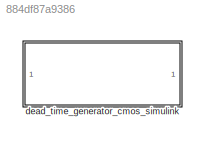
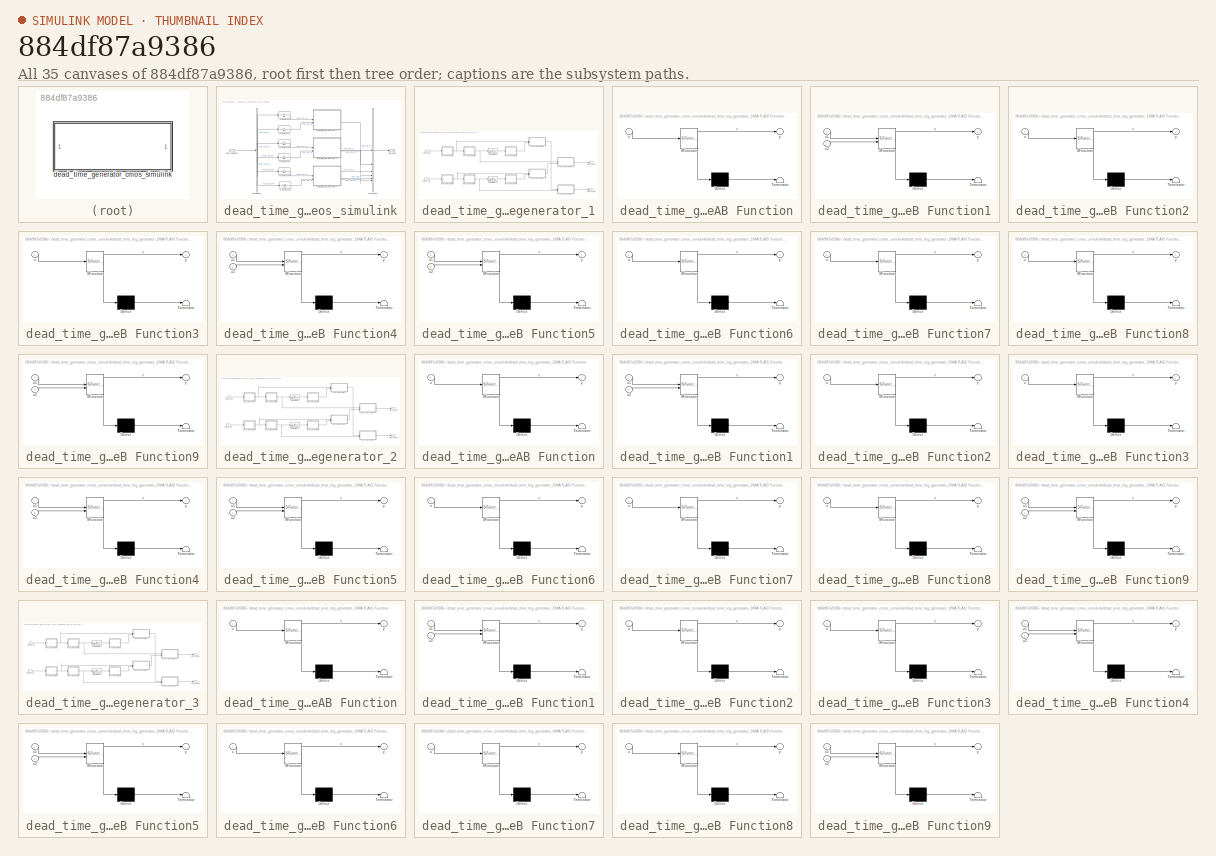
[diagram: thumbnail index - all 35 canvases of the model, root first then tree order]
MODEL slx_884df87a9386
KIND library
CONFIG AbsTol = auto
CONFIG EnableMultiTasking = off
CONFIG FixedStep = auto
CONFIG MaxStep = auto
CONFIG MinStep = auto
CONFIG RelTol = 1e-3
CONFIG SampleTimeConstraint = Unconstrained
CONFIG SolverName = VariableStepAuto
CONFIG StartTime = 0.0
CONFIG StopTime = 10.0
BLOCK [SubSystem] dead_time_generator_cmos_simulink
BLOCK [BusCreator] dead_time_generator_cmos_simulink/Bus Creator
  DisplayOption = bar
  InheritFromInputs = on
  Inputs = 6
BLOCK [BusSelector] dead_time_generator_cmos_simulink/Bus Selector
  OutputSignals = gate_cmd_Q1,gate_cmd_Q2,gate_cmd_Q3,gate_cmd_Q4,gate_cmd_Q5,gate_cmd_Q6
BLOCK [TransferFcn] dead_time_generator_cmos_simulink/Transfer Fcn
  Denominator = [ts 1]
BLOCK [TransferFcn] dead_time_generator_cmos_simulink/Transfer Fcn1
  Denominator = [ts 1]
BLOCK [TransferFcn] dead_time_generator_cmos_simulink/Transfer Fcn2
  Denominator = [ts 1]
BLOCK [TransferFcn] dead_time_generator_cmos_simulink/Transfer Fcn3
  Denominator = [ts 1]
BLOCK [TransferFcn] dead_time_generator_cmos_simulink/Transfer Fcn4
  Denominator = [ts 1]
BLOCK [TransferFcn] dead_time_generator_cmos_simulink/Transfer Fcn5
  Denominator = [ts 1]
BLOCK [Outport] dead_time_generator_cmos_simulink/cmd_gates
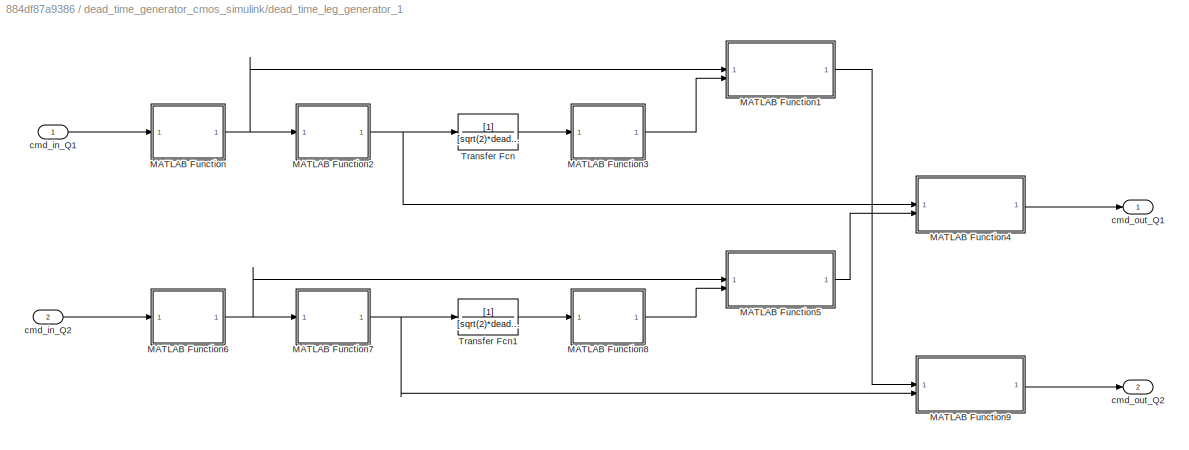
BLOCK [SubSystem] dead_time_generator_cmos_simulink/dead_time_leg_generator_1
BLOCK [SubSystem] dead_time_generator_cmos_simulink/dead_time_leg_generator_1/MATLAB Function
  ErrorFcn = Stateflow.Translate.translate
  PermitHierarchicalResolution = ExplicitOnly
  SFBlockType = MATLAB Function
  TreatAsAtomicUnit = on
BLOCK [Demux] dead_time_generator_cmos_simulink/dead_time_leg_generator_1/MATLAB Function/ Demux 
  Outputs = 1
BLOCK [S-Function] dead_time_generator_cmos_simulink/dead_time_leg_generator_1/MATLAB Function/ SFunction 
  EnableBusSupport = off
  FunctionName = sf_sfun
  Parameters = Vpos_rail_dtg
  PortCounts = [1 2]
  SFcnIsStateOwnerBlock = off
  SFunctionDeploymentMode = off
  Tag = Stateflow S-Function 2
BLOCK [Terminator] dead_time_generator_cmos_simulink/dead_time_leg_generator_1/MATLAB Function/ Terminator 
BLOCK [Inport] dead_time_generator_cmos_simulink/dead_time_leg_generator_1/MATLAB Function/u
BLOCK [Outport] dead_time_generator_cmos_simulink/dead_time_leg_generator_1/MATLAB Function/y
BLOCK [SubSystem] dead_time_generator_cmos_simulink/dead_time_leg_generator_1/MATLAB Function1
  ErrorFcn = Stateflow.Translate.translate
  PermitHierarchicalResolution = ExplicitOnly
  SFBlockType = MATLAB Function
  TreatAsAtomicUnit = on
BLOCK [Demux] dead_time_generator_cmos_simulink/dead_time_leg_generator_1/MATLAB Function1/ Demux 
  Outputs = 1
BLOCK [S-Function] dead_time_generator_cmos_simulink/dead_time_leg_generator_1/MATLAB Function1/ SFunction 
  EnableBusSupport = off
  FunctionName = sf_sfun
  Parameters = Vpos_rail_dtg
  PortCounts = [2 2]
  SFcnIsStateOwnerBlock = off
  SFunctionDeploymentMode = off
  Tag = Stateflow S-Function 3
BLOCK [Terminator] dead_time_generator_cmos_simulink/dead_time_leg_generator_1/MATLAB Function1/ Terminator 
BLOCK [Inport] dead_time_generator_cmos_simulink/dead_time_leg_generator_1/MATLAB Function1/u1
BLOCK [Inport] dead_time_generator_cmos_simulink/dead_time_leg_generator_1/MATLAB Function1/u2
  Port = 2
BLOCK [Outport] dead_time_generator_cmos_simulink/dead_time_leg_generator_1/MATLAB Function1/y
BLOCK [SubSystem] dead_time_generator_cmos_simulink/dead_time_leg_generator_1/MATLAB Function2
  ErrorFcn = Stateflow.Translate.translate
  PermitHierarchicalResolution = ExplicitOnly
  SFBlockType = MATLAB Function
  TreatAsAtomicUnit = on
BLOCK [Demux] dead_time_generator_cmos_simulink/dead_time_leg_generator_1/MATLAB Function2/ Demux 
  Outputs = 1
BLOCK [S-Function] dead_time_generator_cmos_simulink/dead_time_leg_generator_1/MATLAB Function2/ SFunction 
  EnableBusSupport = off
  FunctionName = sf_sfun
  Parameters = Vpos_rail_dtg
  PortCounts = [1 2]
  SFcnIsStateOwnerBlock = off
  SFunctionDeploymentMode = off
  Tag = Stateflow S-Function 4
BLOCK [Terminator] dead_time_generator_cmos_simulink/dead_time_leg_generator_1/MATLAB Function2/ Terminator 
BLOCK [Inport] dead_time_generator_cmos_simulink/dead_time_leg_generator_1/MATLAB Function2/u
BLOCK [Outport] dead_time_generator_cmos_simulink/dead_time_leg_generator_1/MATLAB Function2/y
BLOCK [SubSystem] dead_time_generator_cmos_simulink/dead_time_leg_generator_1/MATLAB Function3
  ErrorFcn = Stateflow.Translate.translate
  PermitHierarchicalResolution = ExplicitOnly
  SFBlockType = MATLAB Function
  TreatAsAtomicUnit = on
BLOCK [Demux] dead_time_generator_cmos_simulink/dead_time_leg_generator_1/MATLAB Function3/ Demux 
  Outputs = 1
BLOCK [S-Function] dead_time_generator_cmos_simulink/dead_time_leg_generator_1/MATLAB Function3/ SFunction 
  EnableBusSupport = off
  FunctionName = sf_sfun
  Parameters = Vpos_rail_dtg
  PortCounts = [1 2]
  SFcnIsStateOwnerBlock = off
  SFunctionDeploymentMode = off
  Tag = Stateflow S-Function 7
BLOCK [Terminator] dead_time_generator_cmos_simulink/dead_time_leg_generator_1/MATLAB Function3/ Terminator 
BLOCK [Inport] dead_time_generator_cmos_simulink/dead_time_leg_generator_1/MATLAB Function3/u
BLOCK [Outport] dead_time_generator_cmos_simulink/dead_time_leg_generator_1/MATLAB Function3/y
BLOCK [SubSystem] dead_time_generator_cmos_simulink/dead_time_leg_generator_1/MATLAB Function4
  ErrorFcn = Stateflow.Translate.translate
  PermitHierarchicalResolution = ExplicitOnly
  SFBlockType = MATLAB Function
  TreatAsAtomicUnit = on
BLOCK [Demux] dead_time_generator_cmos_simulink/dead_time_leg_generator_1/MATLAB Function4/ Demux 
  Outputs = 1
BLOCK [S-Function] dead_time_generator_cmos_simulink/dead_time_leg_generator_1/MATLAB Function4/ SFunction 
  EnableBusSupport = off
  FunctionName = sf_sfun
  Parameters = Vpos_rail_dtg
  PortCounts = [2 2]
  SFcnIsStateOwnerBlock = off
  SFunctionDeploymentMode = off
  Tag = Stateflow S-Function 8
BLOCK [Terminator] dead_time_generator_cmos_simulink/dead_time_leg_generator_1/MATLAB Function4/ Terminator 
BLOCK [Inport] dead_time_generator_cmos_simulink/dead_time_leg_generator_1/MATLAB Function4/u1
BLOCK [Inport] dead_time_generator_cmos_simulink/dead_time_leg_generator_1/MATLAB Function4/u2
  Port = 2
BLOCK [Outport] dead_time_generator_cmos_simulink/dead_time_leg_generator_1/MATLAB Function4/y
BLOCK [SubSystem] dead_time_generator_cmos_simulink/dead_time_leg_generator_1/MATLAB Function5
  ErrorFcn = Stateflow.Translate.translate
  PermitHierarchicalResolution = ExplicitOnly
  SFBlockType = MATLAB Function
  TreatAsAtomicUnit = on
BLOCK [Demux] dead_time_generator_cmos_simulink/dead_time_leg_generator_1/MATLAB Function5/ Demux 
  Outputs = 1
BLOCK [S-Function] dead_time_generator_cmos_simulink/dead_time_leg_generator_1/MATLAB Function5/ SFunction 
  EnableBusSupport = off
  FunctionName = sf_sfun
  Parameters = Vpos_rail_dtg
  PortCounts = [2 2]
  SFcnIsStateOwnerBlock = off
  SFunctionDeploymentMode = off
  Tag = Stateflow S-Function 10
BLOCK [Terminator] dead_time_generator_cmos_simulink/dead_time_leg_generator_1/MATLAB Function5/ Terminator 
BLOCK [Inport] dead_time_generator_cmos_simulink/dead_time_leg_generator_1/MATLAB Function5/u1
BLOCK [Inport] dead_time_generator_cmos_simulink/dead_time_leg_generator_1/MATLAB Function5/u2
  Port = 2
BLOCK [Outport] dead_time_generator_cmos_simulink/dead_time_leg_generator_1/MATLAB Function5/y
BLOCK [SubSystem] dead_time_generator_cmos_simulink/dead_time_leg_generator_1/MATLAB Function6
  ErrorFcn = Stateflow.Translate.translate
  PermitHierarchicalResolution = ExplicitOnly
  SFBlockType = MATLAB Function
  TreatAsAtomicUnit = on
BLOCK [Demux] dead_time_generator_cmos_simulink/dead_time_leg_generator_1/MATLAB Function6/ Demux 
  Outputs = 1
BLOCK [S-Function] dead_time_generator_cmos_simulink/dead_time_leg_generator_1/MATLAB Function6/ SFunction 
  EnableBusSupport = off
  FunctionName = sf_sfun
  Parameters = Vpos_rail_dtg
  PortCounts = [1 2]
  SFcnIsStateOwnerBlock = off
  SFunctionDeploymentMode = off
  Tag = Stateflow S-Function 11
BLOCK [Terminator] dead_time_generator_cmos_simulink/dead_time_leg_generator_1/MATLAB Function6/ Terminator 
BLOCK [Inport] dead_time_generator_cmos_simulink/dead_time_leg_generator_1/MATLAB Function6/u
BLOCK [Outport] dead_time_generator_cmos_simulink/dead_time_leg_generator_1/MATLAB Function6/y
BLOCK [SubSystem] dead_time_generator_cmos_simulink/dead_time_leg_generator_1/MATLAB Function7
  ErrorFcn = Stateflow.Translate.translate
  PermitHierarchicalResolution = ExplicitOnly
  SFBlockType = MATLAB Function
  TreatAsAtomicUnit = on
BLOCK [Demux] dead_time_generator_cmos_simulink/dead_time_leg_generator_1/MATLAB Function7/ Demux 
  Outputs = 1
BLOCK [S-Function] dead_time_generator_cmos_simulink/dead_time_leg_generator_1/MATLAB Function7/ SFunction 
  EnableBusSupport = off
  FunctionName = sf_sfun
  Parameters = Vpos_rail_dtg
  PortCounts = [1 2]
  SFcnIsStateOwnerBlock = off
  SFunctionDeploymentMode = off
  Tag = Stateflow S-Function 12
BLOCK [Terminator] dead_time_generator_cmos_simulink/dead_time_leg_generator_1/MATLAB Function7/ Terminator 
BLOCK [Inport] dead_time_generator_cmos_simulink/dead_time_leg_generator_1/MATLAB Function7/u
BLOCK [Outport] dead_time_generator_cmos_simulink/dead_time_leg_generator_1/MATLAB Function7/y
BLOCK [SubSystem] dead_time_generator_cmos_simulink/dead_time_leg_generator_1/MATLAB Function8
  ErrorFcn = Stateflow.Translate.translate
  PermitHierarchicalResolution = ExplicitOnly
  SFBlockType = MATLAB Function
  TreatAsAtomicUnit = on
BLOCK [Demux] dead_time_generator_cmos_simulink/dead_time_leg_generator_1/MATLAB Function8/ Demux 
  Outputs = 1
BLOCK [S-Function] dead_time_generator_cmos_simulink/dead_time_leg_generator_1/MATLAB Function8/ SFunction 
  EnableBusSupport = off
  FunctionName = sf_sfun
  Parameters = Vpos_rail_dtg
  PortCounts = [1 2]
  SFcnIsStateOwnerBlock = off
  SFunctionDeploymentMode = off
  Tag = Stateflow S-Function 13
BLOCK [Terminator] dead_time_generator_cmos_simulink/dead_time_leg_generator_1/MATLAB Function8/ Terminator 
BLOCK [Inport] dead_time_generator_cmos_simulink/dead_time_leg_generator_1/MATLAB Function8/u
BLOCK [Outport] dead_time_generator_cmos_simulink/dead_time_leg_generator_1/MATLAB Function8/y
BLOCK [SubSystem] dead_time_generator_cmos_simulink/dead_time_leg_generator_1/MATLAB Function9
  ErrorFcn = Stateflow.Translate.translate
  PermitHierarchicalResolution = ExplicitOnly
  SFBlockType = MATLAB Function
  TreatAsAtomicUnit = on
BLOCK [Demux] dead_time_generator_cmos_simulink/dead_time_leg_generator_1/MATLAB Function9/ Demux 
  Outputs = 1
BLOCK [S-Function] dead_time_generator_cmos_simulink/dead_time_leg_generator_1/MATLAB Function9/ SFunction 
  EnableBusSupport = off
  FunctionName = sf_sfun
  Parameters = Vpos_rail_dtg
  PortCounts = [2 2]
  SFcnIsStateOwnerBlock = off
  SFunctionDeploymentMode = off
  Tag = Stateflow S-Function 14
BLOCK [Terminator] dead_time_generator_cmos_simulink/dead_time_leg_generator_1/MATLAB Function9/ Terminator 
BLOCK [Inport] dead_time_generator_cmos_simulink/dead_time_leg_generator_1/MATLAB Function9/u1
BLOCK [Inport] dead_time_generator_cmos_simulink/dead_time_leg_generator_1/MATLAB Function9/u2
  Port = 2
BLOCK [Outport] dead_time_generator_cmos_simulink/dead_time_leg_generator_1/MATLAB Function9/y
BLOCK [TransferFcn] dead_time_generator_cmos_simulink/dead_time_leg_generator_1/Transfer Fcn
  Denominator = [sqrt(2)*deadtime 1]
BLOCK [TransferFcn] dead_time_generator_cmos_simulink/dead_time_leg_generator_1/Transfer Fcn1
  Denominator = [sqrt(2)*deadtime 1]
BLOCK [Inport] dead_time_generator_cmos_simulink/dead_time_leg_generator_1/cmd_in_Q1
BLOCK [Inport] dead_time_generator_cmos_simulink/dead_time_leg_generator_1/cmd_in_Q2
  Port = 2
BLOCK [Outport] dead_time_generator_cmos_simulink/dead_time_leg_generator_1/cmd_out_Q1
BLOCK [Outport] dead_time_generator_cmos_simulink/dead_time_leg_generator_1/cmd_out_Q2
  Port = 2
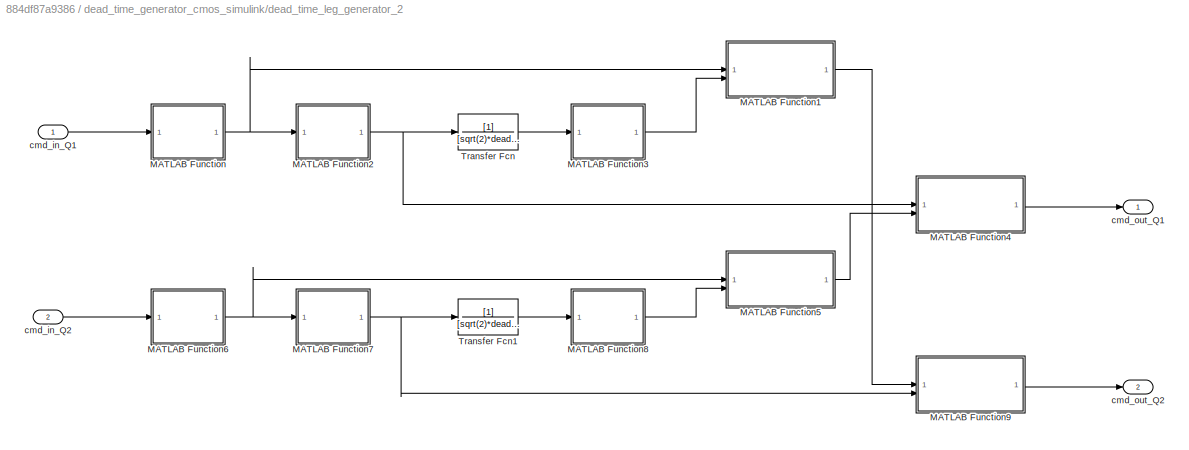
BLOCK [SubSystem] dead_time_generator_cmos_simulink/dead_time_leg_generator_2
BLOCK [SubSystem] dead_time_generator_cmos_simulink/dead_time_leg_generator_2/MATLAB Function
  ErrorFcn = Stateflow.Translate.translate
  PermitHierarchicalResolution = ExplicitOnly
  SFBlockType = MATLAB Function
  TreatAsAtomicUnit = on
BLOCK [Demux] dead_time_generator_cmos_simulink/dead_time_leg_generator_2/MATLAB Function/ Demux 
  Outputs = 1
BLOCK [S-Function] dead_time_generator_cmos_simulink/dead_time_leg_generator_2/MATLAB Function/ SFunction 
  EnableBusSupport = off
  FunctionName = sf_sfun
  Parameters = Vpos_rail_dtg
  PortCounts = [1 2]
  SFcnIsStateOwnerBlock = off
  SFunctionDeploymentMode = off
  Tag = Stateflow S-Function 16
BLOCK [Terminator] dead_time_generator_cmos_simulink/dead_time_leg_generator_2/MATLAB Function/ Terminator 
BLOCK [Inport] dead_time_generator_cmos_simulink/dead_time_leg_generator_2/MATLAB Function/u
BLOCK [Outport] dead_time_generator_cmos_simulink/dead_time_leg_generator_2/MATLAB Function/y
BLOCK [SubSystem] dead_time_generator_cmos_simulink/dead_time_leg_generator_2/MATLAB Function1
  ErrorFcn = Stateflow.Translate.translate
  PermitHierarchicalResolution = ExplicitOnly
  SFBlockType = MATLAB Function
  TreatAsAtomicUnit = on
BLOCK [Demux] dead_time_generator_cmos_simulink/dead_time_leg_generator_2/MATLAB Function1/ Demux 
  Outputs = 1
BLOCK [S-Function] dead_time_generator_cmos_simulink/dead_time_leg_generator_2/MATLAB Function1/ SFunction 
  EnableBusSupport = off
  FunctionName = sf_sfun
  Parameters = Vpos_rail_dtg
  PortCounts = [2 2]
  SFcnIsStateOwnerBlock = off
  SFunctionDeploymentMode = off
  Tag = Stateflow S-Function 17
BLOCK [Terminator] dead_time_generator_cmos_simulink/dead_time_leg_generator_2/MATLAB Function1/ Terminator 
BLOCK [Inport] dead_time_generator_cmos_simulink/dead_time_leg_generator_2/MATLAB Function1/u1
BLOCK [Inport] dead_time_generator_cmos_simulink/dead_time_leg_generator_2/MATLAB Function1/u2
  Port = 2
BLOCK [Outport] dead_time_generator_cmos_simulink/dead_time_leg_generator_2/MATLAB Function1/y
BLOCK [SubSystem] dead_time_generator_cmos_simulink/dead_time_leg_generator_2/MATLAB Function2
  ErrorFcn = Stateflow.Translate.translate
  PermitHierarchicalResolution = ExplicitOnly
  SFBlockType = MATLAB Function
  TreatAsAtomicUnit = on
BLOCK [Demux] dead_time_generator_cmos_simulink/dead_time_leg_generator_2/MATLAB Function2/ Demux 
  Outputs = 1
BLOCK [S-Function] dead_time_generator_cmos_simulink/dead_time_leg_generator_2/MATLAB Function2/ SFunction 
  EnableBusSupport = off
  FunctionName = sf_sfun
  Parameters = Vpos_rail_dtg
  PortCounts = [1 2]
  SFcnIsStateOwnerBlock = off
  SFunctionDeploymentMode = off
  Tag = Stateflow S-Function 18
BLOCK [Terminator] dead_time_generator_cmos_simulink/dead_time_leg_generator_2/MATLAB Function2/ Terminator 
BLOCK [Inport] dead_time_generator_cmos_simulink/dead_time_leg_generator_2/MATLAB Function2/u
BLOCK [Outport] dead_time_generator_cmos_simulink/dead_time_leg_generator_2/MATLAB Function2/y
BLOCK [SubSystem] dead_time_generator_cmos_simulink/dead_time_leg_generator_2/MATLAB Function3
  ErrorFcn = Stateflow.Translate.translate
  PermitHierarchicalResolution = ExplicitOnly
  SFBlockType = MATLAB Function
  TreatAsAtomicUnit = on
BLOCK [Demux] dead_time_generator_cmos_simulink/dead_time_leg_generator_2/MATLAB Function3/ Demux 
  Outputs = 1
BLOCK [S-Function] dead_time_generator_cmos_simulink/dead_time_leg_generator_2/MATLAB Function3/ SFunction 
  EnableBusSupport = off
  FunctionName = sf_sfun
  Parameters = Vpos_rail_dtg
  PortCounts = [1 2]
  SFcnIsStateOwnerBlock = off
  SFunctionDeploymentMode = off
  Tag = Stateflow S-Function 19
BLOCK [Terminator] dead_time_generator_cmos_simulink/dead_time_leg_generator_2/MATLAB Function3/ Terminator 
BLOCK [Inport] dead_time_generator_cmos_simulink/dead_time_leg_generator_2/MATLAB Function3/u
BLOCK [Outport] dead_time_generator_cmos_simulink/dead_time_leg_generator_2/MATLAB Function3/y
BLOCK [SubSystem] dead_time_generator_cmos_simulink/dead_time_leg_generator_2/MATLAB Function4
  ErrorFcn = Stateflow.Translate.translate
  PermitHierarchicalResolution = ExplicitOnly
  SFBlockType = MATLAB Function
  TreatAsAtomicUnit = on
BLOCK [Demux] dead_time_generator_cmos_simulink/dead_time_leg_generator_2/MATLAB Function4/ Demux 
  Outputs = 1
BLOCK [S-Function] dead_time_generator_cmos_simulink/dead_time_leg_generator_2/MATLAB Function4/ SFunction 
  EnableBusSupport = off
  FunctionName = sf_sfun
  Parameters = Vpos_rail_dtg
  PortCounts = [2 2]
  SFcnIsStateOwnerBlock = off
  SFunctionDeploymentMode = off
  Tag = Stateflow S-Function 20
BLOCK [Terminator] dead_time_generator_cmos_simulink/dead_time_leg_generator_2/MATLAB Function4/ Terminator 
BLOCK [Inport] dead_time_generator_cmos_simulink/dead_time_leg_generator_2/MATLAB Function4/u1
BLOCK [Inport] dead_time_generator_cmos_simulink/dead_time_leg_generator_2/MATLAB Function4/u2
  Port = 2
BLOCK [Outport] dead_time_generator_cmos_simulink/dead_time_leg_generator_2/MATLAB Function4/y
BLOCK [SubSystem] dead_time_generator_cmos_simulink/dead_time_leg_generator_2/MATLAB Function5
  ErrorFcn = Stateflow.Translate.translate
  PermitHierarchicalResolution = ExplicitOnly
  SFBlockType = MATLAB Function
  TreatAsAtomicUnit = on
BLOCK [Demux] dead_time_generator_cmos_simulink/dead_time_leg_generator_2/MATLAB Function5/ Demux 
  Outputs = 1
BLOCK [S-Function] dead_time_generator_cmos_simulink/dead_time_leg_generator_2/MATLAB Function5/ SFunction 
  EnableBusSupport = off
  FunctionName = sf_sfun
  Parameters = Vpos_rail_dtg
  PortCounts = [2 2]
  SFcnIsStateOwnerBlock = off
  SFunctionDeploymentMode = off
  Tag = Stateflow S-Function 21
BLOCK [Terminator] dead_time_generator_cmos_simulink/dead_time_leg_generator_2/MATLAB Function5/ Terminator 
BLOCK [Inport] dead_time_generator_cmos_simulink/dead_time_leg_generator_2/MATLAB Function5/u1
BLOCK [Inport] dead_time_generator_cmos_simulink/dead_time_leg_generator_2/MATLAB Function5/u2
  Port = 2
BLOCK [Outport] dead_time_generator_cmos_simulink/dead_time_leg_generator_2/MATLAB Function5/y
BLOCK [SubSystem] dead_time_generator_cmos_simulink/dead_time_leg_generator_2/MATLAB Function6
  ErrorFcn = Stateflow.Translate.translate
  PermitHierarchicalResolution = ExplicitOnly
  SFBlockType = MATLAB Function
  TreatAsAtomicUnit = on
BLOCK [Demux] dead_time_generator_cmos_simulink/dead_time_leg_generator_2/MATLAB Function6/ Demux 
  Outputs = 1
BLOCK [S-Function] dead_time_generator_cmos_simulink/dead_time_leg_generator_2/MATLAB Function6/ SFunction 
  EnableBusSupport = off
  FunctionName = sf_sfun
  Parameters = Vpos_rail_dtg
  PortCounts = [1 2]
  SFcnIsStateOwnerBlock = off
  SFunctionDeploymentMode = off
  Tag = Stateflow S-Function 22
BLOCK [Terminator] dead_time_generator_cmos_simulink/dead_time_leg_generator_2/MATLAB Function6/ Terminator 
BLOCK [Inport] dead_time_generator_cmos_simulink/dead_time_leg_generator_2/MATLAB Function6/u
BLOCK [Outport] dead_time_generator_cmos_simulink/dead_time_leg_generator_2/MATLAB Function6/y
BLOCK [SubSystem] dead_time_generator_cmos_simulink/dead_time_leg_generator_2/MATLAB Function7
  ErrorFcn = Stateflow.Translate.translate
  PermitHierarchicalResolution = ExplicitOnly
  SFBlockType = MATLAB Function
  TreatAsAtomicUnit = on
BLOCK [Demux] dead_time_generator_cmos_simulink/dead_time_leg_generator_2/MATLAB Function7/ Demux 
  Outputs = 1
BLOCK [S-Function] dead_time_generator_cmos_simulink/dead_time_leg_generator_2/MATLAB Function7/ SFunction 
  EnableBusSupport = off
  FunctionName = sf_sfun
  Parameters = Vpos_rail_dtg
  PortCounts = [1 2]
  SFcnIsStateOwnerBlock = off
  SFunctionDeploymentMode = off
  Tag = Stateflow S-Function 25
BLOCK [Terminator] dead_time_generator_cmos_simulink/dead_time_leg_generator_2/MATLAB Function7/ Terminator 
BLOCK [Inport] dead_time_generator_cmos_simulink/dead_time_leg_generator_2/MATLAB Function7/u
BLOCK [Outport] dead_time_generator_cmos_simulink/dead_time_leg_generator_2/MATLAB Function7/y
BLOCK [SubSystem] dead_time_generator_cmos_simulink/dead_time_leg_generator_2/MATLAB Function8
  ErrorFcn = Stateflow.Translate.translate
  PermitHierarchicalResolution = ExplicitOnly
  SFBlockType = MATLAB Function
  TreatAsAtomicUnit = on
BLOCK [Demux] dead_time_generator_cmos_simulink/dead_time_leg_generator_2/MATLAB Function8/ Demux 
  Outputs = 1
BLOCK [S-Function] dead_time_generator_cmos_simulink/dead_time_leg_generator_2/MATLAB Function8/ SFunction 
  EnableBusSupport = off
  FunctionName = sf_sfun
  Parameters = Vpos_rail_dtg
  PortCounts = [1 2]
  SFcnIsStateOwnerBlock = off
  SFunctionDeploymentMode = off
  Tag = Stateflow S-Function 26
BLOCK [Terminator] dead_time_generator_cmos_simulink/dead_time_leg_generator_2/MATLAB Function8/ Terminator 
BLOCK [Inport] dead_time_generator_cmos_simulink/dead_time_leg_generator_2/MATLAB Function8/u
BLOCK [Outport] dead_time_generator_cmos_simulink/dead_time_leg_generator_2/MATLAB Function8/y
BLOCK [SubSystem] dead_time_generator_cmos_simulink/dead_time_leg_generator_2/MATLAB Function9
  ErrorFcn = Stateflow.Translate.translate
  PermitHierarchicalResolution = ExplicitOnly
  SFBlockType = MATLAB Function
  TreatAsAtomicUnit = on
BLOCK [Demux] dead_time_generator_cmos_simulink/dead_time_leg_generator_2/MATLAB Function9/ Demux 
  Outputs = 1
BLOCK [S-Function] dead_time_generator_cmos_simulink/dead_time_leg_generator_2/MATLAB Function9/ SFunction 
  EnableBusSupport = off
  FunctionName = sf_sfun
  Parameters = Vpos_rail_dtg
  PortCounts = [2 2]
  SFcnIsStateOwnerBlock = off
  SFunctionDeploymentMode = off
  Tag = Stateflow S-Function 27
BLOCK [Terminator] dead_time_generator_cmos_simulink/dead_time_leg_generator_2/MATLAB Function9/ Terminator 
BLOCK [Inport] dead_time_generator_cmos_simulink/dead_time_leg_generator_2/MATLAB Function9/u1
BLOCK [Inport] dead_time_generator_cmos_simulink/dead_time_leg_generator_2/MATLAB Function9/u2
  Port = 2
BLOCK [Outport] dead_time_generator_cmos_simulink/dead_time_leg_generator_2/MATLAB Function9/y
BLOCK [TransferFcn] dead_time_generator_cmos_simulink/dead_time_leg_generator_2/Transfer Fcn
  Denominator = [sqrt(2)*deadtime 1]
BLOCK [TransferFcn] dead_time_generator_cmos_simulink/dead_time_leg_generator_2/Transfer Fcn1
  Denominator = [sqrt(2)*deadtime 1]
BLOCK [Inport] dead_time_generator_cmos_simulink/dead_time_leg_generator_2/cmd_in_Q1
BLOCK [Inport] dead_time_generator_cmos_simulink/dead_time_leg_generator_2/cmd_in_Q2
  Port = 2
BLOCK [Outport] dead_time_generator_cmos_simulink/dead_time_leg_generator_2/cmd_out_Q1
BLOCK [Outport] dead_time_generator_cmos_simulink/dead_time_leg_generator_2/cmd_out_Q2
  Port = 2
BLOCK [SubSystem] dead_time_generator_cmos_simulink/dead_time_leg_generator_3
BLOCK [SubSystem] dead_time_generator_cmos_simulink/dead_time_leg_generator_3/MATLAB Function
  ErrorFcn = Stateflow.Translate.translate
  PermitHierarchicalResolution = ExplicitOnly
  SFBlockType = MATLAB Function
  TreatAsAtomicUnit = on
BLOCK [Demux] dead_time_generator_cmos_simulink/dead_time_leg_generator_3/MATLAB Function/ Demux 
  Outputs = 1
BLOCK [S-Function] dead_time_generator_cmos_simulink/dead_time_leg_generator_3/MATLAB Function/ SFunction 
  EnableBusSupport = off
  FunctionName = sf_sfun
  Parameters = Vpos_rail_dtg
  PortCounts = [1 2]
  SFcnIsStateOwnerBlock = off
  SFunctionDeploymentMode = off
  Tag = Stateflow S-Function 28
BLOCK [Terminator] dead_time_generator_cmos_simulink/dead_time_leg_generator_3/MATLAB Function/ Terminator 
BLOCK [Inport] dead_time_generator_cmos_simulink/dead_time_leg_generator_3/MATLAB Function/u
BLOCK [Outport] dead_time_generator_cmos_simulink/dead_time_leg_generator_3/MATLAB Function/y
BLOCK [SubSystem] dead_time_generator_cmos_simulink/dead_time_leg_generator_3/MATLAB Function1
  ErrorFcn = Stateflow.Translate.translate
  PermitHierarchicalResolution = ExplicitOnly
  SFBlockType = MATLAB Function
  TreatAsAtomicUnit = on
BLOCK [Demux] dead_time_generator_cmos_simulink/dead_time_leg_generator_3/MATLAB Function1/ Demux 
  Outputs = 1
BLOCK [S-Function] dead_time_generator_cmos_simulink/dead_time_leg_generator_3/MATLAB Function1/ SFunction 
  EnableBusSupport = off
  FunctionName = sf_sfun
  Parameters = Vpos_rail_dtg
  PortCounts = [2 2]
  SFcnIsStateOwnerBlock = off
  SFunctionDeploymentMode = off
  Tag = Stateflow S-Function 29
BLOCK [Terminator] dead_time_generator_cmos_simulink/dead_time_leg_generator_3/MATLAB Function1/ Terminator 
BLOCK [Inport] dead_time_generator_cmos_simulink/dead_time_leg_generator_3/MATLAB Function1/u1
BLOCK [Inport] dead_time_generator_cmos_simulink/dead_time_leg_generator_3/MATLAB Function1/u2
  Port = 2
BLOCK [Outport] dead_time_generator_cmos_simulink/dead_time_leg_generator_3/MATLAB Function1/y
BLOCK [SubSystem] dead_time_generator_cmos_simulink/dead_time_leg_generator_3/MATLAB Function2
  ErrorFcn = Stateflow.Translate.translate
  PermitHierarchicalResolution = ExplicitOnly
  SFBlockType = MATLAB Function
  TreatAsAtomicUnit = on
BLOCK [Demux] dead_time_generator_cmos_simulink/dead_time_leg_generator_3/MATLAB Function2/ Demux 
  Outputs = 1
BLOCK [S-Function] dead_time_generator_cmos_simulink/dead_time_leg_generator_3/MATLAB Function2/ SFunction 
  EnableBusSupport = off
  FunctionName = sf_sfun
  Parameters = Vpos_rail_dtg
  PortCounts = [1 2]
  SFcnIsStateOwnerBlock = off
  SFunctionDeploymentMode = off
  Tag = Stateflow S-Function 30
BLOCK [Terminator] dead_time_generator_cmos_simulink/dead_time_leg_generator_3/MATLAB Function2/ Terminator 
BLOCK [Inport] dead_time_generator_cmos_simulink/dead_time_leg_generator_3/MATLAB Function2/u
BLOCK [Outport] dead_time_generator_cmos_simulink/dead_time_leg_generator_3/MATLAB Function2/y
BLOCK [SubSystem] dead_time_generator_cmos_simulink/dead_time_leg_generator_3/MATLAB Function3
  ErrorFcn = Stateflow.Translate.translate
  PermitHierarchicalResolution = ExplicitOnly
  SFBlockType = MATLAB Function
  TreatAsAtomicUnit = on
BLOCK [Demux] dead_time_generator_cmos_simulink/dead_time_leg_generator_3/MATLAB Function3/ Demux 
  Outputs = 1
BLOCK [S-Function] dead_time_generator_cmos_simulink/dead_time_leg_generator_3/MATLAB Function3/ SFunction 
  EnableBusSupport = off
  FunctionName = sf_sfun
  Parameters = Vpos_rail_dtg
  PortCounts = [1 2]
  SFcnIsStateOwnerBlock = off
  SFunctionDeploymentMode = off
  Tag = Stateflow S-Function 31
BLOCK [Terminator] dead_time_generator_cmos_simulink/dead_time_leg_generator_3/MATLAB Function3/ Terminator 
BLOCK [Inport] dead_time_generator_cmos_simulink/dead_time_leg_generator_3/MATLAB Function3/u
BLOCK [Outport] dead_time_generator_cmos_simulink/dead_time_leg_generator_3/MATLAB Function3/y
BLOCK [SubSystem] dead_time_generator_cmos_simulink/dead_time_leg_generator_3/MATLAB Function4
  ErrorFcn = Stateflow.Translate.translate
  PermitHierarchicalResolution = ExplicitOnly
  SFBlockType = MATLAB Function
  TreatAsAtomicUnit = on
BLOCK [Demux] dead_time_generator_cmos_simulink/dead_time_leg_generator_3/MATLAB Function4/ Demux 
  Outputs = 1
BLOCK [S-Function] dead_time_generator_cmos_simulink/dead_time_leg_generator_3/MATLAB Function4/ SFunction 
  EnableBusSupport = off
  FunctionName = sf_sfun
  Parameters = Vpos_rail_dtg
  PortCounts = [2 2]
  SFcnIsStateOwnerBlock = off
  SFunctionDeploymentMode = off
  Tag = Stateflow S-Function 32
BLOCK [Terminator] dead_time_generator_cmos_simulink/dead_time_leg_generator_3/MATLAB Function4/ Terminator 
BLOCK [Inport] dead_time_generator_cmos_simulink/dead_time_leg_generator_3/MATLAB Function4/u1
BLOCK [Inport] dead_time_generator_cmos_simulink/dead_time_leg_generator_3/MATLAB Function4/u2
  Port = 2
BLOCK [Outport] dead_time_generator_cmos_simulink/dead_time_leg_generator_3/MATLAB Function4/y
BLOCK [SubSystem] dead_time_generator_cmos_simulink/dead_time_leg_generator_3/MATLAB Function5
  ErrorFcn = Stateflow.Translate.translate
  PermitHierarchicalResolution = ExplicitOnly
  SFBlockType = MATLAB Function
  TreatAsAtomicUnit = on
BLOCK [Demux] dead_time_generator_cmos_simulink/dead_time_leg_generator_3/MATLAB Function5/ Demux 
  Outputs = 1
BLOCK [S-Function] dead_time_generator_cmos_simulink/dead_time_leg_generator_3/MATLAB Function5/ SFunction 
  EnableBusSupport = off
  FunctionName = sf_sfun
  Parameters = Vpos_rail_dtg
  PortCounts = [2 2]
  SFcnIsStateOwnerBlock = off
  SFunctionDeploymentMode = off
  Tag = Stateflow S-Function 33
BLOCK [Terminator] dead_time_generator_cmos_simulink/dead_time_leg_generator_3/MATLAB Function5/ Terminator 
BLOCK [Inport] dead_time_generator_cmos_simulink/dead_time_leg_generator_3/MATLAB Function5/u1
BLOCK [Inport] dead_time_generator_cmos_simulink/dead_time_leg_generator_3/MATLAB Function5/u2
  Port = 2
BLOCK [Outport] dead_time_generator_cmos_simulink/dead_time_leg_generator_3/MATLAB Function5/y
BLOCK [SubSystem] dead_time_generator_cmos_simulink/dead_time_leg_generator_3/MATLAB Function6
  ErrorFcn = Stateflow.Translate.translate
  PermitHierarchicalResolution = ExplicitOnly
  SFBlockType = MATLAB Function
  TreatAsAtomicUnit = on
BLOCK [Demux] dead_time_generator_cmos_simulink/dead_time_leg_generator_3/MATLAB Function6/ Demux 
  Outputs = 1
BLOCK [S-Function] dead_time_generator_cmos_simulink/dead_time_leg_generator_3/MATLAB Function6/ SFunction 
  EnableBusSupport = off
  FunctionName = sf_sfun
  Parameters = Vpos_rail_dtg
  PortCounts = [1 2]
  SFcnIsStateOwnerBlock = off
  SFunctionDeploymentMode = off
  Tag = Stateflow S-Function 34
BLOCK [Terminator] dead_time_generator_cmos_simulink/dead_time_leg_generator_3/MATLAB Function6/ Terminator 
BLOCK [Inport] dead_time_generator_cmos_simulink/dead_time_leg_generator_3/MATLAB Function6/u
BLOCK [Outport] dead_time_generator_cmos_simulink/dead_time_leg_generator_3/MATLAB Function6/y
BLOCK [SubSystem] dead_time_generator_cmos_simulink/dead_time_leg_generator_3/MATLAB Function7
  ErrorFcn = Stateflow.Translate.translate
  PermitHierarchicalResolution = ExplicitOnly
  SFBlockType = MATLAB Function
  TreatAsAtomicUnit = on
BLOCK [Demux] dead_time_generator_cmos_simulink/dead_time_leg_generator_3/MATLAB Function7/ Demux 
  Outputs = 1
BLOCK [S-Function] dead_time_generator_cmos_simulink/dead_time_leg_generator_3/MATLAB Function7/ SFunction 
  EnableBusSupport = off
  FunctionName = sf_sfun
  Parameters = Vpos_rail_dtg
  PortCounts = [1 2]
  SFcnIsStateOwnerBlock = off
  SFunctionDeploymentMode = off
  Tag = Stateflow S-Function 35
BLOCK [Terminator] dead_time_generator_cmos_simulink/dead_time_leg_generator_3/MATLAB Function7/ Terminator 
BLOCK [Inport] dead_time_generator_cmos_simulink/dead_time_leg_generator_3/MATLAB Function7/u
BLOCK [Outport] dead_time_generator_cmos_simulink/dead_time_leg_generator_3/MATLAB Function7/y
BLOCK [SubSystem] dead_time_generator_cmos_simulink/dead_time_leg_generator_3/MATLAB Function8
  ErrorFcn = Stateflow.Translate.translate
  PermitHierarchicalResolution = ExplicitOnly
  SFBlockType = MATLAB Function
  TreatAsAtomicUnit = on
BLOCK [Demux] dead_time_generator_cmos_simulink/dead_time_leg_generator_3/MATLAB Function8/ Demux 
  Outputs = 1
BLOCK [S-Function] dead_time_generator_cmos_simulink/dead_time_leg_generator_3/MATLAB Function8/ SFunction 
  EnableBusSupport = off
  FunctionName = sf_sfun
  Parameters = Vpos_rail_dtg
  PortCounts = [1 2]
  SFcnIsStateOwnerBlock = off
  SFunctionDeploymentMode = off
  Tag = Stateflow S-Function 36
BLOCK [Terminator] dead_time_generator_cmos_simulink/dead_time_leg_generator_3/MATLAB Function8/ Terminator 
BLOCK [Inport] dead_time_generator_cmos_simulink/dead_time_leg_generator_3/MATLAB Function8/u
BLOCK [Outport] dead_time_generator_cmos_simulink/dead_time_leg_generator_3/MATLAB Function8/y
BLOCK [SubSystem] dead_time_generator_cmos_simulink/dead_time_leg_generator_3/MATLAB Function9
  ErrorFcn = Stateflow.Translate.translate
  PermitHierarchicalResolution = ExplicitOnly
  SFBlockType = MATLAB Function
  TreatAsAtomicUnit = on
BLOCK [Demux] dead_time_generator_cmos_simulink/dead_time_leg_generator_3/MATLAB Function9/ Demux 
  Outputs = 1
BLOCK [S-Function] dead_time_generator_cmos_simulink/dead_time_leg_generator_3/MATLAB Function9/ SFunction 
  EnableBusSupport = off
  FunctionName = sf_sfun
  Parameters = Vpos_rail_dtg
  PortCounts = [2 2]
  SFcnIsStateOwnerBlock = off
  SFunctionDeploymentMode = off
  Tag = Stateflow S-Function 37
BLOCK [Terminator] dead_time_generator_cmos_simulink/dead_time_leg_generator_3/MATLAB Function9/ Terminator 
BLOCK [Inport] dead_time_generator_cmos_simulink/dead_time_leg_generator_3/MATLAB Function9/u1
BLOCK [Inport] dead_time_generator_cmos_simulink/dead_time_leg_generator_3/MATLAB Function9/u2
  Port = 2
BLOCK [Outport] dead_time_generator_cmos_simulink/dead_time_leg_generator_3/MATLAB Function9/y
BLOCK [TransferFcn] dead_time_generator_cmos_simulink/dead_time_leg_generator_3/Transfer Fcn
  Denominator = [sqrt(2)*deadtime 1]
BLOCK [TransferFcn] dead_time_generator_cmos_simulink/dead_time_leg_generator_3/Transfer Fcn1
  Denominator = [sqrt(2)*deadtime 1]
BLOCK [Inport] dead_time_generator_cmos_simulink/dead_time_leg_generator_3/cmd_in_Q1
BLOCK [Inport] dead_time_generator_cmos_simulink/dead_time_leg_generator_3/cmd_in_Q2
  Port = 2
BLOCK [Outport] dead_time_generator_cmos_simulink/dead_time_leg_generator_3/cmd_out_Q1
BLOCK [Outport] dead_time_generator_cmos_simulink/dead_time_leg_generator_3/cmd_out_Q2
  Port = 2
BLOCK [Inport] dead_time_generator_cmos_simulink/gate_commands
LINE dead_time_generator_cmos_simulink/Bus Creator:1 -> dead_time_generator_cmos_simulink/cmd_gates:1
LINE dead_time_generator_cmos_simulink/Bus Selector:1 -> dead_time_generator_cmos_simulink/Transfer Fcn:1
LINE dead_time_generator_cmos_simulink/Bus Selector:2 -> dead_time_generator_cmos_simulink/Transfer Fcn1:1
LINE dead_time_generator_cmos_simulink/Bus Selector:3 -> dead_time_generator_cmos_simulink/Transfer Fcn2:1
LINE dead_time_generator_cmos_simulink/Bus Selector:4 -> dead_time_generator_cmos_simulink/Transfer Fcn3:1
LINE dead_time_generator_cmos_simulink/Bus Selector:5 -> dead_time_generator_cmos_simulink/Transfer Fcn4:1
LINE dead_time_generator_cmos_simulink/Bus Selector:6 -> dead_time_generator_cmos_simulink/Transfer Fcn5:1
LINE dead_time_generator_cmos_simulink/Transfer Fcn1:1 -> dead_time_generator_cmos_simulink/dead_time_leg_generator_1:2
LINE dead_time_generator_cmos_simulink/Transfer Fcn2:1 -> dead_time_generator_cmos_simulink/dead_time_leg_generator_2:1
LINE dead_time_generator_cmos_simulink/Transfer Fcn3:1 -> dead_time_generator_cmos_simulink/dead_time_leg_generator_2:2
LINE dead_time_generator_cmos_simulink/Transfer Fcn4:1 -> dead_time_generator_cmos_simulink/dead_time_leg_generator_3:1
LINE dead_time_generator_cmos_simulink/Transfer Fcn5:1 -> dead_time_generator_cmos_simulink/dead_time_leg_generator_3:2
LINE dead_time_generator_cmos_simulink/Transfer Fcn:1 -> dead_time_generator_cmos_simulink/dead_time_leg_generator_1:1
LINE dead_time_generator_cmos_simulink/dead_time_leg_generator_1/MATLAB Function1:1 -> dead_time_generator_cmos_simulink/dead_time_leg_generator_1/MATLAB Function9:1
NET dead_time_generator_cmos_simulink/dead_time_leg_generator_1/MATLAB Function2:1 -> dead_time_generator_cmos_simulink/dead_time_leg_generator_1/MATLAB Function4:1, dead_time_generator_cmos_simulink/dead_time_leg_generator_1/Transfer Fcn:1
LINE dead_time_generator_cmos_simulink/dead_time_leg_generator_1/MATLAB Function3:1 -> dead_time_generator_cmos_simulink/dead_time_leg_generator_1/MATLAB Function1:2
LINE dead_time_generator_cmos_simulink/dead_time_leg_generator_1/MATLAB Function4:1 -> dead_time_generator_cmos_simulink/dead_time_leg_generator_1/cmd_out_Q1:1
LINE dead_time_generator_cmos_simulink/dead_time_leg_generator_1/MATLAB Function5:1 -> dead_time_generator_cmos_simulink/dead_time_leg_generator_1/MATLAB Function4:2
NET dead_time_generator_cmos_simulink/dead_time_leg_generator_1/MATLAB Function6:1 -> dead_time_generator_cmos_simulink/dead_time_leg_generator_1/MATLAB Function5:1, dead_time_generator_cmos_simulink/dead_time_leg_generator_1/MATLAB Function7:1
NET dead_time_generator_cmos_simulink/dead_time_leg_generator_1/MATLAB Function7:1 -> dead_time_generator_cmos_simulink/dead_time_leg_generator_1/MATLAB Function9:2, dead_time_generator_cmos_simulink/dead_time_leg_generator_1/Transfer Fcn1:1
LINE dead_time_generator_cmos_simulink/dead_time_leg_generator_1/MATLAB Function8:1 -> dead_time_generator_cmos_simulink/dead_time_leg_generator_1/MATLAB Function5:2
LINE dead_time_generator_cmos_simulink/dead_time_leg_generator_1/MATLAB Function9:1 -> dead_time_generator_cmos_simulink/dead_time_leg_generator_1/cmd_out_Q2:1
NET dead_time_generator_cmos_simulink/dead_time_leg_generator_1/MATLAB Function:1 -> dead_time_generator_cmos_simulink/dead_time_leg_generator_1/MATLAB Function1:1, dead_time_generator_cmos_simulink/dead_time_leg_generator_1/MATLAB Function2:1
LINE dead_time_generator_cmos_simulink/dead_time_leg_generator_1/Transfer Fcn1:1 -> dead_time_generator_cmos_simulink/dead_time_leg_generator_1/MATLAB Function8:1
LINE dead_time_generator_cmos_simulink/dead_time_leg_generator_1/Transfer Fcn:1 -> dead_time_generator_cmos_simulink/dead_time_leg_generator_1/MATLAB Function3:1
LINE dead_time_generator_cmos_simulink/dead_time_leg_generator_1/cmd_in_Q1:1 -> dead_time_generator_cmos_simulink/dead_time_leg_generator_1/MATLAB Function:1
LINE dead_time_generator_cmos_simulink/dead_time_leg_generator_1/cmd_in_Q2:1 -> dead_time_generator_cmos_simulink/dead_time_leg_generator_1/MATLAB Function6:1
LINE dead_time_generator_cmos_simulink/dead_time_leg_generator_1:1 -> dead_time_generator_cmos_simulink/Bus Creator:1
LINE dead_time_generator_cmos_simulink/dead_time_leg_generator_1:2 -> dead_time_generator_cmos_simulink/Bus Creator:2
LINE dead_time_generator_cmos_simulink/dead_time_leg_generator_2/MATLAB Function1:1 -> dead_time_generator_cmos_simulink/dead_time_leg_generator_2/MATLAB Function9:1
NET dead_time_generator_cmos_simulink/dead_time_leg_generator_2/MATLAB Function2:1 -> dead_time_generator_cmos_simulink/dead_time_leg_generator_2/MATLAB Function4:1, dead_time_generator_cmos_simulink/dead_time_leg_generator_2/Transfer Fcn:1
LINE dead_time_generator_cmos_simulink/dead_time_leg_generator_2/MATLAB Function3:1 -> dead_time_generator_cmos_simulink/dead_time_leg_generator_2/MATLAB Function1:2
LINE dead_time_generator_cmos_simulink/dead_time_leg_generator_2/MATLAB Function4:1 -> dead_time_generator_cmos_simulink/dead_time_leg_generator_2/cmd_out_Q1:1
LINE dead_time_generator_cmos_simulink/dead_time_leg_generator_2/MATLAB Function5:1 -> dead_time_generator_cmos_simulink/dead_time_leg_generator_2/MATLAB Function4:2
NET dead_time_generator_cmos_simulink/dead_time_leg_generator_2/MATLAB Function6:1 -> dead_time_generator_cmos_simulink/dead_time_leg_generator_2/MATLAB Function5:1, dead_time_generator_cmos_simulink/dead_time_leg_generator_2/MATLAB Function7:1
NET dead_time_generator_cmos_simulink/dead_time_leg_generator_2/MATLAB Function7:1 -> dead_time_generator_cmos_simulink/dead_time_leg_generator_2/MATLAB Function9:2, dead_time_generator_cmos_simulink/dead_time_leg_generator_2/Transfer Fcn1:1
LINE dead_time_generator_cmos_simulink/dead_time_leg_generator_2/MATLAB Function8:1 -> dead_time_generator_cmos_simulink/dead_time_leg_generator_2/MATLAB Function5:2
LINE dead_time_generator_cmos_simulink/dead_time_leg_generator_2/MATLAB Function9:1 -> dead_time_generator_cmos_simulink/dead_time_leg_generator_2/cmd_out_Q2:1
NET dead_time_generator_cmos_simulink/dead_time_leg_generator_2/MATLAB Function:1 -> dead_time_generator_cmos_simulink/dead_time_leg_generator_2/MATLAB Function1:1, dead_time_generator_cmos_simulink/dead_time_leg_generator_2/MATLAB Function2:1
LINE dead_time_generator_cmos_simulink/dead_time_leg_generator_2/Transfer Fcn1:1 -> dead_time_generator_cmos_simulink/dead_time_leg_generator_2/MATLAB Function8:1
LINE dead_time_generator_cmos_simulink/dead_time_leg_generator_2/Transfer Fcn:1 -> dead_time_generator_cmos_simulink/dead_time_leg_generator_2/MATLAB Function3:1
LINE dead_time_generator_cmos_simulink/dead_time_leg_generator_2/cmd_in_Q1:1 -> dead_time_generator_cmos_simulink/dead_time_leg_generator_2/MATLAB Function:1
LINE dead_time_generator_cmos_simulink/dead_time_leg_generator_2/cmd_in_Q2:1 -> dead_time_generator_cmos_simulink/dead_time_leg_generator_2/MATLAB Function6:1
LINE dead_time_generator_cmos_simulink/dead_time_leg_generator_2:1 -> dead_time_generator_cmos_simulink/Bus Creator:3
LINE dead_time_generator_cmos_simulink/dead_time_leg_generator_2:2 -> dead_time_generator_cmos_simulink/Bus Creator:4
LINE dead_time_generator_cmos_simulink/dead_time_leg_generator_3/MATLAB Function1:1 -> dead_time_generator_cmos_simulink/dead_time_leg_generator_3/MATLAB Function9:1
NET dead_time_generator_cmos_simulink/dead_time_leg_generator_3/MATLAB Function2:1 -> dead_time_generator_cmos_simulink/dead_time_leg_generator_3/MATLAB Function4:1, dead_time_generator_cmos_simulink/dead_time_leg_generator_3/Transfer Fcn:1
LINE dead_time_generator_cmos_simulink/dead_time_leg_generator_3/MATLAB Function3:1 -> dead_time_generator_cmos_simulink/dead_time_leg_generator_3/MATLAB Function1:2
LINE dead_time_generator_cmos_simulink/dead_time_leg_generator_3/MATLAB Function4:1 -> dead_time_generator_cmos_simulink/dead_time_leg_generator_3/cmd_out_Q1:1
LINE dead_time_generator_cmos_simulink/dead_time_leg_generator_3/MATLAB Function5:1 -> dead_time_generator_cmos_simulink/dead_time_leg_generator_3/MATLAB Function4:2
NET dead_time_generator_cmos_simulink/dead_time_leg_generator_3/MATLAB Function6:1 -> dead_time_generator_cmos_simulink/dead_time_leg_generator_3/MATLAB Function5:1, dead_time_generator_cmos_simulink/dead_time_leg_generator_3/MATLAB Function7:1
NET dead_time_generator_cmos_simulink/dead_time_leg_generator_3/MATLAB Function7:1 -> dead_time_generator_cmos_simulink/dead_time_leg_generator_3/MATLAB Function9:2, dead_time_generator_cmos_simulink/dead_time_leg_generator_3/Transfer Fcn1:1
LINE dead_time_generator_cmos_simulink/dead_time_leg_generator_3/MATLAB Function8:1 -> dead_time_generator_cmos_simulink/dead_time_leg_generator_3/MATLAB Function5:2
LINE dead_time_generator_cmos_simulink/dead_time_leg_generator_3/MATLAB Function9:1 -> dead_time_generator_cmos_simulink/dead_time_leg_generator_3/cmd_out_Q2:1
NET dead_time_generator_cmos_simulink/dead_time_leg_generator_3/MATLAB Function:1 -> dead_time_generator_cmos_simulink/dead_time_leg_generator_3/MATLAB Function1:1, dead_time_generator_cmos_simulink/dead_time_leg_generator_3/MATLAB Function2:1
LINE dead_time_generator_cmos_simulink/dead_time_leg_generator_3/Transfer Fcn1:1 -> dead_time_generator_cmos_simulink/dead_time_leg_generator_3/MATLAB Function8:1
LINE dead_time_generator_cmos_simulink/dead_time_leg_generator_3/Transfer Fcn:1 -> dead_time_generator_cmos_simulink/dead_time_leg_generator_3/MATLAB Function3:1
LINE dead_time_generator_cmos_simulink/dead_time_leg_generator_3/cmd_in_Q1:1 -> dead_time_generator_cmos_simulink/dead_time_leg_generator_3/MATLAB Function:1
LINE dead_time_generator_cmos_simulink/dead_time_leg_generator_3/cmd_in_Q2:1 -> dead_time_generator_cmos_simulink/dead_time_leg_generator_3/MATLAB Function6:1
LINE dead_time_generator_cmos_simulink/dead_time_leg_generator_3:1 -> dead_time_generator_cmos_simulink/Bus Creator:5
LINE dead_time_generator_cmos_simulink/dead_time_leg_generator_3:2 -> dead_time_generator_cmos_simulink/Bus Creator:6
LINE dead_time_generator_cmos_simulink/gate_commands:1 -> dead_time_generator_cmos_simulink/Bus Selector:1
note: NET lines group one-source signal fan-out (src -> all destinations, sorted); 1:1 wires keep LINE
CHART dead_time_generator_cmos_simulink/dead_time_leg_generator_1/MATLAB Function states=1 transitions=1
  STATE_LABEL 'eML_blk_kernel()'
  STATE_LABEL 'SCRIPT:\nfunction y = not_cmos(u, Vpos_rail_dtg)\n\nvth = Vpos_rail_dtg/2;\n\nif u > vth\n    y = 0;\nelse\n    y = Vpos_rail_dtg;\nend\n\n'
CHART dead_time_generator_cmos_simulink/dead_time_leg_generator_2/MATLAB Function1 states=1 transitions=1
  STATE_LABEL 'eML_blk_kernel()'
  STATE_LABEL 'SCRIPT:\nfunction y = and_cmos(u1, u2, Vpos_rail_dtg)\n\nvth = Vpos_rail_dtg/2;\n\nif (u1 > vth && u2 > vth)\n    y = Vpos_rail_dtg;\nelse\n    y = 0;\nend\n\n'
CHART dead_time_generator_cmos_simulink/dead_time_leg_generator_2/MATLAB Function2 states=1 transitions=1
  STATE_LABEL 'eML_blk_kernel()'
  STATE_LABEL 'SCRIPT:\nfunction y = not_cmos(u, Vpos_rail_dtg)\n\nvth = Vpos_rail_dtg/2;\n\nif u > vth\n    y = 0;\nelse\n    y = Vpos_rail_dtg;\nend\n\n'
CHART dead_time_generator_cmos_simulink/dead_time_leg_generator_2/MATLAB Function3 states=1 transitions=1
  STATE_LABEL 'eML_blk_kernel()'
  STATE_LABEL 'SCRIPT:\nfunction y = not_cmos(u, Vpos_rail_dtg)\n\nvth = Vpos_rail_dtg/2;\n\nif u > vth\n    y = 0;\nelse\n    y = Vpos_rail_dtg;\nend\n\n'
CHART dead_time_generator_cmos_simulink/dead_time_leg_generator_2/MATLAB Function4 states=1 transitions=1
  STATE_LABEL 'eML_blk_kernel()'
  STATE_LABEL 'SCRIPT:\nfunction y = and_cmos(u1, u2, Vpos_rail_dtg)\n\nvth = Vpos_rail_dtg/2;\n\nif (u1 > vth && u2 > vth)\n    y = Vpos_rail_dtg;\nelse\n    y = 0;\nend\n\n'
CHART dead_time_generator_cmos_simulink/dead_time_leg_generator_2/MATLAB Function5 states=1 transitions=1
  STATE_LABEL 'eML_blk_kernel()'
  STATE_LABEL 'SCRIPT:\nfunction y = and_cmos(u1, u2, Vpos_rail_dtg)\n\nvth = Vpos_rail_dtg/2;\n\nif (u1 > vth && u2 > vth)\n    y = Vpos_rail_dtg;\nelse\n    y = 0;\nend\n\n'
CHART dead_time_generator_cmos_simulink/dead_time_leg_generator_2/MATLAB Function6 states=1 transitions=1
  STATE_LABEL 'eML_blk_kernel()'
  STATE_LABEL 'SCRIPT:\nfunction y = not_cmos(u, Vpos_rail_dtg)\n\nvth = Vpos_rail_dtg/2;\n\nif u > vth\n    y = 0;\nelse\n    y = Vpos_rail_dtg;\nend\n\n'
CHART dead_time_generator_cmos_simulink/dead_time_leg_generator_2/MATLAB Function7 states=1 transitions=1
  STATE_LABEL 'eML_blk_kernel()'
  STATE_LABEL 'SCRIPT:\nfunction y = not_cmos(u, Vpos_rail_dtg)\n\nvth = Vpos_rail_dtg/2;\n\nif u > vth\n    y = 0;\nelse\n    y = Vpos_rail_dtg;\nend\n\n'
CHART dead_time_generator_cmos_simulink/dead_time_leg_generator_2/MATLAB Function8 states=1 transitions=1
  STATE_LABEL 'eML_blk_kernel()'
  STATE_LABEL 'SCRIPT:\nfunction y = not_cmos(u, Vpos_rail_dtg)\n\nvth = Vpos_rail_dtg/2;\n\nif u > vth\n    y = 0;\nelse\n    y = Vpos_rail_dtg;\nend\n\n'
CHART dead_time_generator_cmos_simulink/dead_time_leg_generator_2/MATLAB Function9 states=1 transitions=1
  STATE_LABEL 'eML_blk_kernel()'
  STATE_LABEL 'SCRIPT:\nfunction y = and_cmos(u1, u2, Vpos_rail_dtg)\n\nvth = Vpos_rail_dtg/2;\n\nif (u1 > vth && u2 > vth)\n    y = Vpos_rail_dtg;\nelse\n    y = 0;\nend\n\n'
CHART dead_time_generator_cmos_simulink/dead_time_leg_generator_3/MATLAB Function states=1 transitions=1
  STATE_LABEL 'eML_blk_kernel()'
  STATE_LABEL 'SCRIPT:\nfunction y = not_cmos(u, Vpos_rail_dtg)\n\nvth = Vpos_rail_dtg/2;\n\nif u > vth\n    y = 0;\nelse\n    y = Vpos_rail_dtg;\nend\n\n'
CHART dead_time_generator_cmos_simulink/dead_time_leg_generator_1/MATLAB Function1 states=1 transitions=1
  STATE_LABEL 'eML_blk_kernel()'
  STATE_LABEL 'SCRIPT:\nfunction y = and_cmos(u1, u2, Vpos_rail_dtg)\n\nvth = Vpos_rail_dtg/2;\n\nif (u1 > vth && u2 > vth)\n    y = Vpos_rail_dtg;\nelse\n    y = 0;\nend\n\n'
CHART dead_time_generator_cmos_simulink/dead_time_leg_generator_3/MATLAB Function1 states=1 transitions=1
  STATE_LABEL 'eML_blk_kernel()'
  STATE_LABEL 'SCRIPT:\nfunction y = and_cmos(u1, u2, Vpos_rail_dtg)\n\nvth = Vpos_rail_dtg/2;\n\nif (u1 > vth && u2 > vth)\n    y = Vpos_rail_dtg;\nelse\n    y = 0;\nend\n\n'
CHART dead_time_generator_cmos_simulink/dead_time_leg_generator_3/MATLAB Function2 states=1 transitions=1
  STATE_LABEL 'eML_blk_kernel()'
  STATE_LABEL 'SCRIPT:\nfunction y = not_cmos(u, Vpos_rail_dtg)\n\nvth = Vpos_rail_dtg/2;\n\nif u > vth\n    y = 0;\nelse\n    y = Vpos_rail_dtg;\nend\n\n'
CHART dead_time_generator_cmos_simulink/dead_time_leg_generator_3/MATLAB Function3 states=1 transitions=1
  STATE_LABEL 'eML_blk_kernel()'
  STATE_LABEL 'SCRIPT:\nfunction y = not_cmos(u, Vpos_rail_dtg)\n\nvth = Vpos_rail_dtg/2;\n\nif u > vth\n    y = 0;\nelse\n    y = Vpos_rail_dtg;\nend\n\n'
CHART dead_time_generator_cmos_simulink/dead_time_leg_generator_3/MATLAB Function4 states=1 transitions=1
  STATE_LABEL 'eML_blk_kernel()'
  STATE_LABEL 'SCRIPT:\nfunction y = and_cmos(u1, u2, Vpos_rail_dtg)\n\nvth = Vpos_rail_dtg/2;\n\nif (u1 > vth && u2 > vth)\n    y = Vpos_rail_dtg;\nelse\n    y = 0;\nend\n\n'
CHART dead_time_generator_cmos_simulink/dead_time_leg_generator_3/MATLAB Function5 states=1 transitions=1
  STATE_LABEL 'eML_blk_kernel()'
  STATE_LABEL 'SCRIPT:\nfunction y = and_cmos(u1, u2, Vpos_rail_dtg)\n\nvth = Vpos_rail_dtg/2;\n\nif (u1 > vth && u2 > vth)\n    y = Vpos_rail_dtg;\nelse\n    y = 0;\nend\n\n'
CHART dead_time_generator_cmos_simulink/dead_time_leg_generator_3/MATLAB Function6 states=1 transitions=1
  STATE_LABEL 'eML_blk_kernel()'
  STATE_LABEL 'SCRIPT:\nfunction y = not_cmos(u, Vpos_rail_dtg)\n\nvth = Vpos_rail_dtg/2;\n\nif u > vth\n    y = 0;\nelse\n    y = Vpos_rail_dtg;\nend\n\n'
CHART dead_time_generator_cmos_simulink/dead_time_leg_generator_3/MATLAB Function7 states=1 transitions=1
  STATE_LABEL 'eML_blk_kernel()'
  STATE_LABEL 'SCRIPT:\nfunction y = not_cmos(u, Vpos_rail_dtg)\n\nvth = Vpos_rail_dtg/2;\n\nif u > vth\n    y = 0;\nelse\n    y = Vpos_rail_dtg;\nend\n\n'
CHART dead_time_generator_cmos_simulink/dead_time_leg_generator_3/MATLAB Function8 states=1 transitions=1
  STATE_LABEL 'eML_blk_kernel()'
  STATE_LABEL 'SCRIPT:\nfunction y = not_cmos(u, Vpos_rail_dtg)\n\nvth = Vpos_rail_dtg/2;\n\nif u > vth\n    y = 0;\nelse\n    y = Vpos_rail_dtg;\nend\n\n'
CHART dead_time_generator_cmos_simulink/dead_time_leg_generator_3/MATLAB Function9 states=1 transitions=1
  STATE_LABEL 'eML_blk_kernel()'
  STATE_LABEL 'SCRIPT:\nfunction y = and_cmos(u1, u2, Vpos_rail_dtg)\n\nvth = Vpos_rail_dtg/2;\n\nif (u1 > vth && u2 > vth)\n    y = Vpos_rail_dtg;\nelse\n    y = 0;\nend\n\n'
CHART dead_time_generator_cmos_simulink/dead_time_leg_generator_1/MATLAB Function2 states=1 transitions=1
  STATE_LABEL 'eML_blk_kernel()'
  STATE_LABEL 'SCRIPT:\nfunction y = not_cmos(u, Vpos_rail_dtg)\n\nvth = Vpos_rail_dtg/2;\n\nif u > vth\n    y = 0;\nelse\n    y = Vpos_rail_dtg;\nend\n\n'
CHART dead_time_generator_cmos_simulink/dead_time_leg_generator_1/MATLAB Function3 states=1 transitions=1
  STATE_LABEL 'eML_blk_kernel()'
  STATE_LABEL 'SCRIPT:\nfunction y = not_cmos(u, Vpos_rail_dtg)\n\nvth = Vpos_rail_dtg/2;\n\nif u > vth\n    y = 0;\nelse\n    y = Vpos_rail_dtg;\nend\n\n'
CHART dead_time_generator_cmos_simulink/dead_time_leg_generator_1/MATLAB Function4 states=1 transitions=1
  STATE_LABEL 'eML_blk_kernel()'
  STATE_LABEL 'SCRIPT:\nfunction y = and_cmos(u1, u2, Vpos_rail_dtg)\n\nvth = Vpos_rail_dtg/2;\n\nif (u1 > vth && u2 > vth)\n    y = Vpos_rail_dtg;\nelse\n    y = 0;\nend\n\n'
CHART dead_time_generator_cmos_simulink/dead_time_leg_generator_1/MATLAB Function5 states=1 transitions=1
  STATE_LABEL 'eML_blk_kernel()'
  STATE_LABEL 'SCRIPT:\nfunction y = and_cmos(u1, u2, Vpos_rail_dtg)\n\nvth = Vpos_rail_dtg/2;\n\nif (u1 > vth && u2 > vth)\n    y = Vpos_rail_dtg;\nelse\n    y = 0;\nend\n\n'
CHART dead_time_generator_cmos_simulink/dead_time_leg_generator_1/MATLAB Function6 states=1 transitions=1
  STATE_LABEL 'eML_blk_kernel()'
  STATE_LABEL 'SCRIPT:\nfunction y = not_cmos(u, Vpos_rail_dtg)\n\nvth = Vpos_rail_dtg/2;\n\nif u > vth\n    y = 0;\nelse\n    y = Vpos_rail_dtg;\nend\n\n'
CHART dead_time_generator_cmos_simulink/dead_time_leg_generator_1/MATLAB Function7 states=1 transitions=1
  STATE_LABEL 'eML_blk_kernel()'
  STATE_LABEL 'SCRIPT:\nfunction y = not_cmos(u, Vpos_rail_dtg)\n\nvth = Vpos_rail_dtg/2;\n\nif u > vth\n    y = 0;\nelse\n    y = Vpos_rail_dtg;\nend\n\n'
CHART dead_time_generator_cmos_simulink/dead_time_leg_generator_1/MATLAB Function8 states=1 transitions=1
  STATE_LABEL 'eML_blk_kernel()'
  STATE_LABEL 'SCRIPT:\nfunction y = not_cmos(u, Vpos_rail_dtg)\n\nvth = Vpos_rail_dtg/2;\n\nif u > vth\n    y = 0;\nelse\n    y = Vpos_rail_dtg;\nend\n\n'
CHART dead_time_generator_cmos_simulink/dead_time_leg_generator_1/MATLAB Function9 states=1 transitions=1
  STATE_LABEL 'eML_blk_kernel()'
  STATE_LABEL 'SCRIPT:\nfunction y = and_cmos(u1, u2, Vpos_rail_dtg)\n\nvth = Vpos_rail_dtg/2;\n\nif (u1 > vth && u2 > vth)\n    y = Vpos_rail_dtg;\nelse\n    y = 0;\nend\n\n'
CHART dead_time_generator_cmos_simulink/dead_time_leg_generator_2/MATLAB Function states=1 transitions=1
  STATE_LABEL 'eML_blk_kernel()'
  STATE_LABEL 'SCRIPT:\nfunction y = not_cmos(u, Vpos_rail_dtg)\n\nvth = Vpos_rail_dtg/2;\n\nif u > vth\n    y = 0;\nelse\n    y = Vpos_rail_dtg;\nend\n\n'
CHART  states=0 transitions=0
CHART  states=0 transitions=0
CHART  states=0 transitions=0
CHART  states=0 transitions=0
CHART  states=0 transitions=0
CHART  states=0 transitions=0
CHART  states=0 transitions=0
CHART  states=0 transitions=0
CHART  states=0 transitions=0
CHART  states=0 transitions=0
CHART  states=0 transitions=0
CHART  states=0 transitions=0
CHART  states=0 transitions=0
CHART  states=0 transitions=0
CHART  states=0 transitions=0
CHART  states=0 transitions=0
CHART  states=0 transitions=0
CHART  states=0 transitions=0
CHART  states=0 transitions=0
CHART  states=0 transitions=0
CHART  states=0 transitions=0
CHART  states=0 transitions=0
CHART  states=0 transitions=0
CHART  states=0 transitions=0
CHART  states=0 transitions=0
CHART  states=0 transitions=0
CHART  states=0 transitions=0
CHART  states=0 transitions=0
CHART  states=0 transitions=0
CHART  states=0 transitions=0
